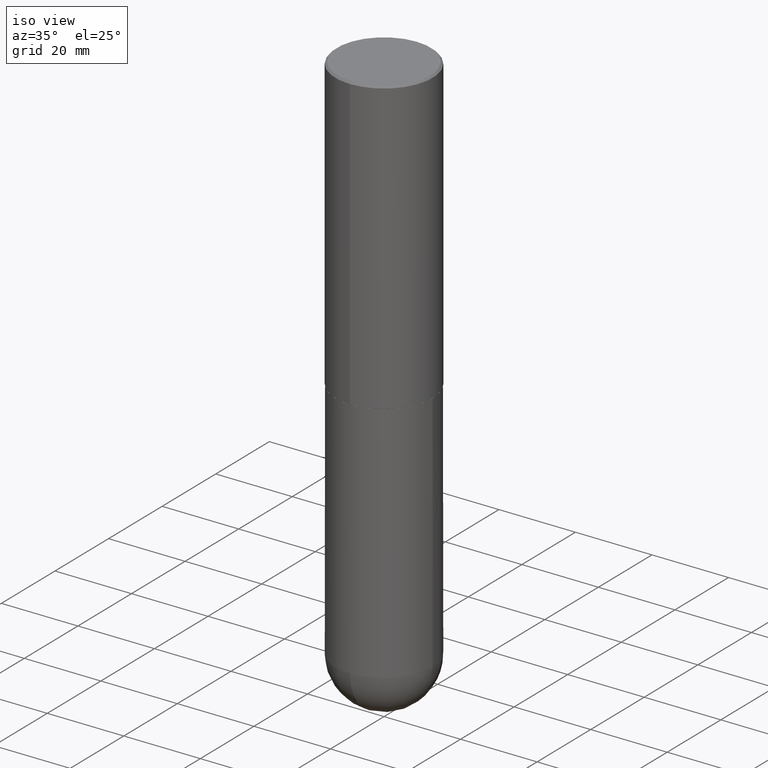
[diagram: clean part render]
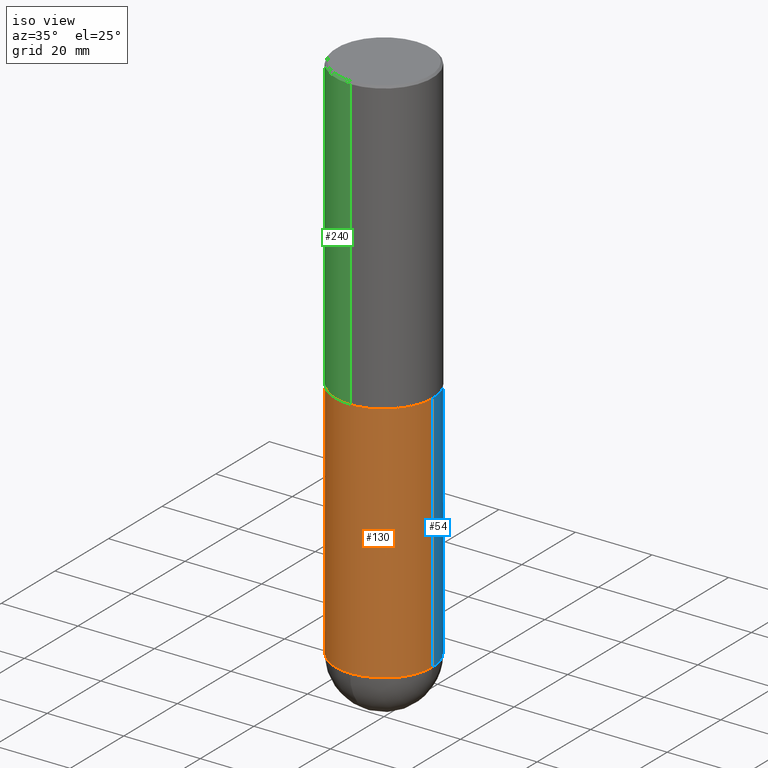
[diagram: same view with three faces highlighted in distinct colors, each labeled with its STEP entity id]
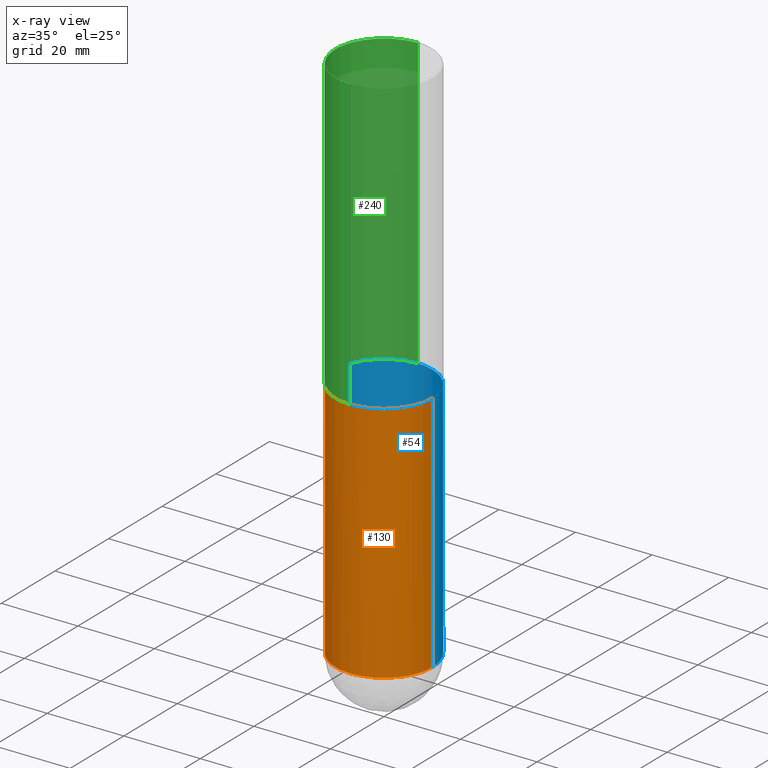
[diagram: x-ray of the same camera — body ghosted, the three highlighted faces saturated]
A machine part, iso view with three faces highlighted in distinct colors.
The next image is the same camera in x-ray (body ghosted, the three faces saturated) — at least one of them is partly hidden behind the body in this view.
Their STEP definitions:

[orange] entity #130 — the highlighted cylindrical surface (partial cylindrical patch) has radius 12.7 mm, axis along (-0, 0, 1).
#5 = DIRECTION ( 'NONE',  ( 1.000000000000000000, -6.982962677686266711E-15, 4.876176775795935793E-29 ) ) ;
#20 = VERTEX_POINT ( 'NONE', #162 ) ;
#29 = EDGE_CURVE ( 'NONE', #395, #87, #396, .T. ) ;
#30 = DIRECTION ( 'NONE',  ( -2.445468806185136597E-29, 3.491481338843145583E-15, 1.000000000000000000 ) ) ;
#32 = CYLINDRICAL_SURFACE ( 'NONE', #155, 0.5000000000000000000 ) ;
#36 = CIRCLE ( 'NONE', #220, 0.5000000000000000000 ) ;
#47 = AXIS2_PLACEMENT_3D ( 'NONE', #127, #30, #261 ) ;
#56 = CARTESIAN_POINT ( 'NONE',  ( 7.336406418555409790E-29, -1.047444401652943635E-14, -3.000000000000000444 ) ) ;
#61 = ORIENTED_EDGE ( 'NONE', *, *, #300, .T. ) ;
#69 = CARTESIAN_POINT ( 'NONE',  ( 1.345007843401825128E-28, -1.920314736363730603E-14, -5.500000000000000888 ) ) ;
#74 = FACE_OUTER_BOUND ( 'NONE', #359, .T. ) ;
#76 = EDGE_CURVE ( 'NONE', #87, #371, #235, .T. ) ;
#78 = CARTESIAN_POINT ( 'NONE',  ( -0.5000000000000000000, 3.552713678800500929E-15, -2.459467545127452891E-29 ) ) ;
#83 = CARTESIAN_POINT ( 'NONE',  ( -0.5000000000000000000, -1.128608201128287263E-14, -5.500000000000000888 ) ) ;
#87 = VERTEX_POINT ( 'NONE', #196 ) ;
#89 = CARTESIAN_POINT ( 'NONE',  ( 0.5000000000000000000, -3.491481338843133355E-15, 2.438088387897967896E-29 ) ) ;
#105 = ORIENTED_EDGE ( 'NONE', *, *, #76, .T. ) ;
#119 = VECTOR ( 'NONE', #149, 39.37007874015748143 ) ;
#127 = CARTESIAN_POINT ( 'NONE',  ( 1.345007843401825128E-28, -1.920314736363730603E-14, -5.500000000000000888 ) ) ;
#130 = ADVANCED_FACE ( 'NONE', ( #74 ), #32, .T. ) ;
#142 = ORIENTED_EDGE ( 'NONE', *, *, #349, .F. ) ;
#146 = LINE ( 'NONE', #78, #119 ) ;
#149 = DIRECTION ( 'NONE',  ( -2.445468806185136877E-29, 3.491481338843145188E-15, 1.000000000000000000 ) ) ;
#155 = AXIS2_PLACEMENT_3D ( 'NONE', #294, #164, #5 ) ;
#162 = CARTESIAN_POINT ( 'NONE',  ( 0.5000000000000000000, -1.396592535537257129E-14, -3.000000000000000444 ) ) ;
#164 = DIRECTION ( 'NONE',  ( -2.445468806185136597E-29, 3.491481338843145583E-15, 1.000000000000000000 ) ) ;
#168 = VERTEX_POINT ( 'NONE', #264 ) ;
#186 = VECTOR ( 'NONE', #278, 39.37007874015748143 ) ;
#196 = CARTESIAN_POINT ( 'NONE',  ( -3.552713678800369978E-15, -0.5000000000000196509, -5.499999999999999112 ) ) ;
#220 = AXIS2_PLACEMENT_3D ( 'NONE', #56, #377, #335 ) ;
#235 = CIRCLE ( 'NONE', #341, 0.5000000000000000000 ) ;
#237 = LINE ( 'NONE', #89, #186 ) ;
#249 = EDGE_CURVE ( 'NONE', #168, #20, #36, .T. ) ;
#256 = DIRECTION ( 'NONE',  ( -2.445468806185136597E-29, 3.491481338843145583E-15, 1.000000000000000000 ) ) ;
#258 = CARTESIAN_POINT ( 'NONE',  ( 0.5000000000000000000, -1.833027702892651007E-14, -5.500000000000000888 ) ) ;
#261 = DIRECTION ( 'NONE',  ( 1.000000000000000000, -6.982962677686270655E-15, 0.000000000000000000 ) ) ;
#264 = CARTESIAN_POINT ( 'NONE',  ( -0.5000000000000000000, -1.128608201128286947E-14, -3.000000000000000444 ) ) ;
#278 = DIRECTION ( 'NONE',  ( -2.445468806185136877E-29, 3.491481338843145188E-15, 1.000000000000000000 ) ) ;
#294 = CARTESIAN_POINT ( 'NONE',  ( 0.000000000000000000, 0.000000000000000000, 0.000000000000000000 ) ) ;
#300 = EDGE_CURVE ( 'NONE', #371, #20, #237, .T. ) ;
#335 = DIRECTION ( 'NONE',  ( 1.000000000000000000, -6.982962677686266711E-15, 0.000000000000000000 ) ) ;
#341 = AXIS2_PLACEMENT_3D ( 'NONE', #69, #256, #392 ) ;
#349 = EDGE_CURVE ( 'NONE', #395, #168, #146, .T. ) ;
#359 = EDGE_LOOP ( 'NONE', ( #142, #403, #105, #61, #400 ) ) ;
#371 = VERTEX_POINT ( 'NONE', #258 ) ;
#377 = DIRECTION ( 'NONE',  ( -2.445468806185136597E-29, 3.491481338843145583E-15, 1.000000000000000000 ) ) ;
#392 = DIRECTION ( 'NONE',  ( 1.000000000000000000, -6.982962677686270655E-15, 0.000000000000000000 ) ) ;
#395 = VERTEX_POINT ( 'NONE', #83 ) ;
#396 = CIRCLE ( 'NONE', #47, 0.5000000000000000000 ) ;
#400 = ORIENTED_EDGE ( 'NONE', *, *, #249, .F. ) ;
#403 = ORIENTED_EDGE ( 'NONE', *, *, #29, .T. ) ;

[blue] entity #54 — the highlighted cylindrical surface (partial cylindrical patch) has radius 12.7 mm, axis along (-0, 0, 1).
#6 = DIRECTION ( 'NONE',  ( 1.000000000000000000, -6.982962677686266711E-15, 4.876176775795935793E-29 ) ) ;
#7 = CARTESIAN_POINT ( 'NONE',  ( 1.345007843401825128E-28, -1.920314736363730603E-14, -5.500000000000000888 ) ) ;
#20 = VERTEX_POINT ( 'NONE', #162 ) ;
#25 = CIRCLE ( 'NONE', #31, 0.5000000000000000000 ) ;
#31 = AXIS2_PLACEMENT_3D ( 'NONE', #33, #62, #295 ) ;
#33 = CARTESIAN_POINT ( 'NONE',  ( 7.336406418555409790E-29, -1.047444401652943635E-14, -3.000000000000000444 ) ) ;
#44 = EDGE_CURVE ( 'NONE', #223, #395, #284, .T. ) ;
#54 = ADVANCED_FACE ( 'NONE', ( #391 ), #167, .T. ) ;
#62 = DIRECTION ( 'NONE',  ( -2.445468806185136597E-29, 3.491481338843145583E-15, 1.000000000000000000 ) ) ;
#71 = AXIS2_PLACEMENT_3D ( 'NONE', #100, #156, #6 ) ;
#78 = CARTESIAN_POINT ( 'NONE',  ( -0.5000000000000000000, 3.552713678800500929E-15, -2.459467545127452891E-29 ) ) ;
#83 = CARTESIAN_POINT ( 'NONE',  ( -0.5000000000000000000, -1.128608201128287263E-14, -5.500000000000000888 ) ) ;
#89 = CARTESIAN_POINT ( 'NONE',  ( 0.5000000000000000000, -3.491481338843133355E-15, 2.438088387897967896E-29 ) ) ;
#93 = EDGE_CURVE ( 'NONE', #371, #223, #150, .T. ) ;
#100 = CARTESIAN_POINT ( 'NONE',  ( 0.000000000000000000, 0.000000000000000000, 0.000000000000000000 ) ) ;
#111 = EDGE_CURVE ( 'NONE', #20, #168, #25, .T. ) ;
#119 = VECTOR ( 'NONE', #149, 39.37007874015748143 ) ;
#121 = ORIENTED_EDGE ( 'NONE', *, *, #93, .T. ) ;
#131 = CARTESIAN_POINT ( 'NONE',  ( 1.345007843401825128E-28, -1.920314736363730603E-14, -5.500000000000000888 ) ) ;
#132 = EDGE_LOOP ( 'NONE', ( #271, #136, #406, #202, #121 ) ) ;
#136 = ORIENTED_EDGE ( 'NONE', *, *, #349, .T. ) ;
#146 = LINE ( 'NONE', #78, #119 ) ;
#149 = DIRECTION ( 'NONE',  ( -2.445468806185136877E-29, 3.491481338843145188E-15, 1.000000000000000000 ) ) ;
#150 = CIRCLE ( 'NONE', #287, 0.5000000000000000000 ) ;
#156 = DIRECTION ( 'NONE',  ( -2.445468806185136597E-29, 3.491481338843145583E-15, 1.000000000000000000 ) ) ;
#159 = DIRECTION ( 'NONE',  ( -2.445468806185136597E-29, 3.491481338843145583E-15, 1.000000000000000000 ) ) ;
#162 = CARTESIAN_POINT ( 'NONE',  ( 0.5000000000000000000, -1.396592535537257129E-14, -3.000000000000000444 ) ) ;
#167 = CYLINDRICAL_SURFACE ( 'NONE', #71, 0.5000000000000000000 ) ;
#168 = VERTEX_POINT ( 'NONE', #264 ) ;
#186 = VECTOR ( 'NONE', #278, 39.37007874015748143 ) ;
#191 = DIRECTION ( 'NONE',  ( -2.445468806185136597E-29, 3.491481338843145583E-15, 1.000000000000000000 ) ) ;
#202 = ORIENTED_EDGE ( 'NONE', *, *, #300, .F. ) ;
#223 = VERTEX_POINT ( 'NONE', #251 ) ;
#237 = LINE ( 'NONE', #89, #186 ) ;
#251 = CARTESIAN_POINT ( 'NONE',  ( 3.491481338843267462E-15, 0.4999999999999808487, -5.500000000000002665 ) ) ;
#258 = CARTESIAN_POINT ( 'NONE',  ( 0.5000000000000000000, -1.833027702892651007E-14, -5.500000000000000888 ) ) ;
#264 = CARTESIAN_POINT ( 'NONE',  ( -0.5000000000000000000, -1.128608201128286947E-14, -3.000000000000000444 ) ) ;
#271 = ORIENTED_EDGE ( 'NONE', *, *, #44, .T. ) ;
#278 = DIRECTION ( 'NONE',  ( -2.445468806185136877E-29, 3.491481338843145188E-15, 1.000000000000000000 ) ) ;
#284 = CIRCLE ( 'NONE', #315, 0.5000000000000000000 ) ;
#287 = AXIS2_PLACEMENT_3D ( 'NONE', #7, #191, #358 ) ;
#295 = DIRECTION ( 'NONE',  ( 1.000000000000000000, -6.982962677686266711E-15, 0.000000000000000000 ) ) ;
#300 = EDGE_CURVE ( 'NONE', #371, #20, #237, .T. ) ;
#315 = AXIS2_PLACEMENT_3D ( 'NONE', #131, #159, #357 ) ;
#349 = EDGE_CURVE ( 'NONE', #395, #168, #146, .T. ) ;
#357 = DIRECTION ( 'NONE',  ( 1.000000000000000000, -6.982962677686270655E-15, 0.000000000000000000 ) ) ;
#358 = DIRECTION ( 'NONE',  ( 1.000000000000000000, -6.982962677686270655E-15, 0.000000000000000000 ) ) ;
#371 = VERTEX_POINT ( 'NONE', #258 ) ;
#391 = FACE_OUTER_BOUND ( 'NONE', #132, .T. ) ;
#395 = VERTEX_POINT ( 'NONE', #83 ) ;
#406 = ORIENTED_EDGE ( 'NONE', *, *, #111, .F. ) ;

[green] entity #240 — the highlighted cylindrical surface (partial cylindrical patch) has radius 12.7 mm, axis along (-0, 0, 1).
#2 = EDGE_LOOP ( 'NONE', ( #16, #385, #302, #40 ) ) ;
#4 = EDGE_CURVE ( 'NONE', #243, #206, #263, .T. ) ;
#16 = ORIENTED_EDGE ( 'NONE', *, *, #361, .F. ) ;
#18 = DIRECTION ( 'NONE',  ( -2.445681918219229661E-29, 3.491176150280740574E-15, 1.000000000000000000 ) ) ;
#21 = FACE_OUTER_BOUND ( 'NONE', #2, .T. ) ;
#28 = VECTOR ( 'NONE', #184, 39.37007874015748143 ) ;
#34 = EDGE_CURVE ( 'NONE', #299, #206, #398, .T. ) ;
#40 = ORIENTED_EDGE ( 'NONE', *, *, #34, .F. ) ;
#63 = AXIS2_PLACEMENT_3D ( 'NONE', #177, #18, #308 ) ;
#98 = DIRECTION ( 'NONE',  ( -2.445681918219229661E-29, 3.491176150280740574E-15, 1.000000000000000000 ) ) ;
#115 = CARTESIAN_POINT ( 'NONE',  ( -3.430248998885764992E-15, -0.5000000000000001110, -0.01999999999999835937 ) ) ;
#116 = DIRECTION ( 'NONE',  ( -2.445681918219229661E-29, 3.491176150280740574E-15, 1.000000000000000000 ) ) ;
#139 = CARTESIAN_POINT ( 'NONE',  ( 0.000000000000000000, 0.000000000000000000, 0.000000000000000000 ) ) ;
#177 = CARTESIAN_POINT ( 'NONE',  ( 7.334600072739471352E-29, -1.047003727469194245E-14, -2.999000000000000554 ) ) ;
#184 = DIRECTION ( 'NONE',  ( -2.445681918219229661E-29, 3.491176150280740574E-15, 1.000000000000000000 ) ) ;
#187 = CIRCLE ( 'NONE', #63, 0.5000000000000004441 ) ;
#197 = VECTOR ( 'NONE', #98, 39.37007874015748143 ) ;
#206 = VERTEX_POINT ( 'NONE', #115 ) ;
#213 = CYLINDRICAL_SURFACE ( 'NONE', #279, 0.5000000000000002220 ) ;
#214 = EDGE_CURVE ( 'NONE', #343, #243, #187, .T. ) ;
#219 = CARTESIAN_POINT ( 'NONE',  ( 3.552713678800501718E-15, 0.5000000000000002220, -1.745588075140371076E-15 ) ) ;
#240 = ADVANCED_FACE ( 'NONE', ( #21 ), #213, .T. ) ;
#243 = VERTEX_POINT ( 'NONE', #345 ) ;
#255 = CARTESIAN_POINT ( 'NONE',  ( 4.891363836438485106E-31, -6.982352300561518372E-17, -0.02000000000000010797 ) ) ;
#263 = LINE ( 'NONE', #386, #197 ) ;
#273 = CARTESIAN_POINT ( 'NONE',  ( 3.491481338843133355E-15, 0.4999999999999999445, -0.02000000000000185310 ) ) ;
#279 = AXIS2_PLACEMENT_3D ( 'NONE', #139, #116, #405 ) ;
#283 = LINE ( 'NONE', #219, #28 ) ;
#293 = DIRECTION ( 'NONE',  ( -6.982962677686265922E-15, -1.000000000000000000, 3.491643216902136408E-15 ) ) ;
#299 = VERTEX_POINT ( 'NONE', #273 ) ;
#302 = ORIENTED_EDGE ( 'NONE', *, *, #4, .T. ) ;
#308 = DIRECTION ( 'NONE',  ( -6.982962677686265133E-15, -1.000000000000000000, 3.278217592397113101E-15 ) ) ;
#318 = AXIS2_PLACEMENT_3D ( 'NONE', #255, #360, #293 ) ;
#343 = VERTEX_POINT ( 'NONE', #347 ) ;
#345 = CARTESIAN_POINT ( 'NONE',  ( -3.491481338843062752E-15, -0.5000000000000108802, -2.998999999999998778 ) ) ;
#347 = CARTESIAN_POINT ( 'NONE',  ( 3.552713678800539584E-15, 0.4999999999999900080, -2.999000000000001886 ) ) ;
#360 = DIRECTION ( 'NONE',  ( -2.445681918219229661E-29, 3.491176150280740574E-15, 1.000000000000000000 ) ) ;
#361 = EDGE_CURVE ( 'NONE', #343, #299, #283, .T. ) ;
#385 = ORIENTED_EDGE ( 'NONE', *, *, #214, .T. ) ;
#386 = CARTESIAN_POINT ( 'NONE',  ( -3.491481338843134539E-15, -0.5000000000000002220, 1.745588075140371076E-15 ) ) ;
#398 = CIRCLE ( 'NONE', #318, 0.5000000000000000000 ) ;
#405 = DIRECTION ( 'NONE',  ( -6.982962677686265922E-15, -1.000000000000000000, 3.491176150280740574E-15 ) ) ;